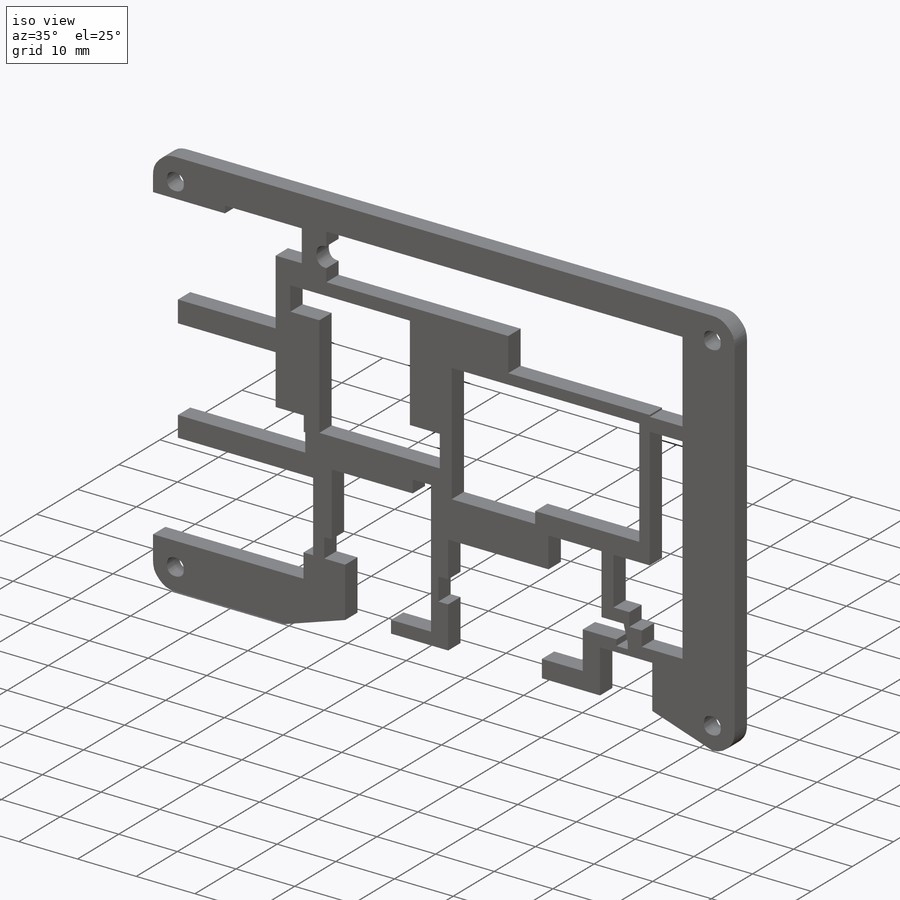
[diagram: iso view]
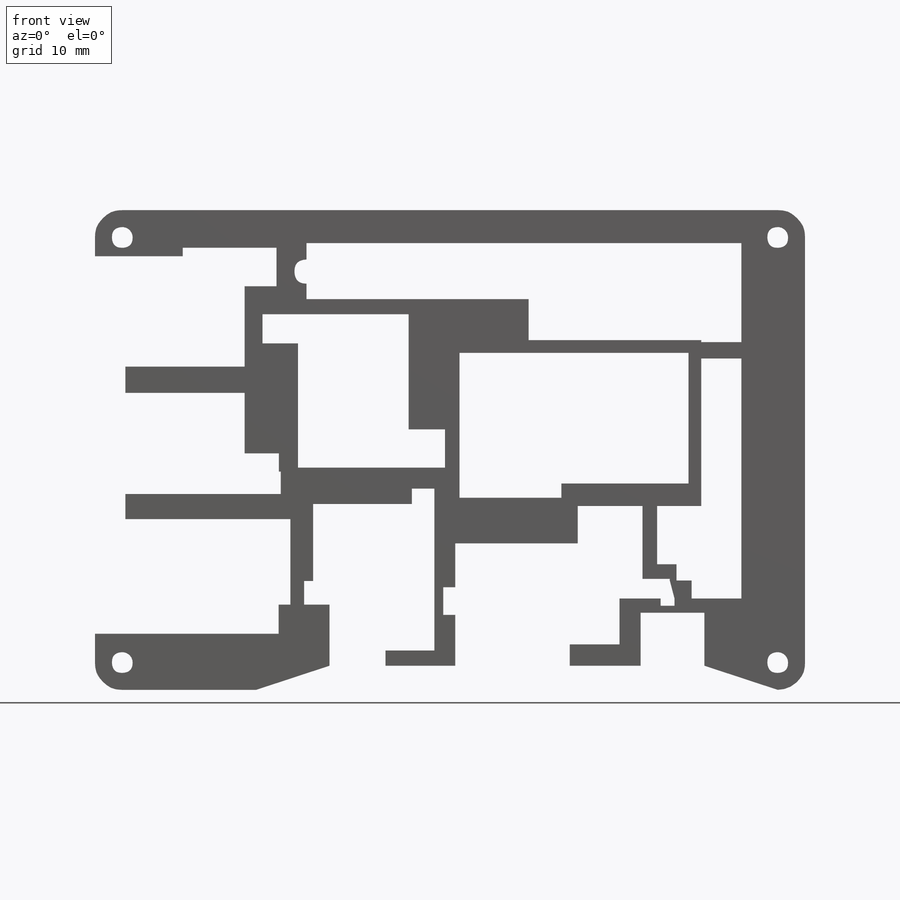
[diagram: front view]
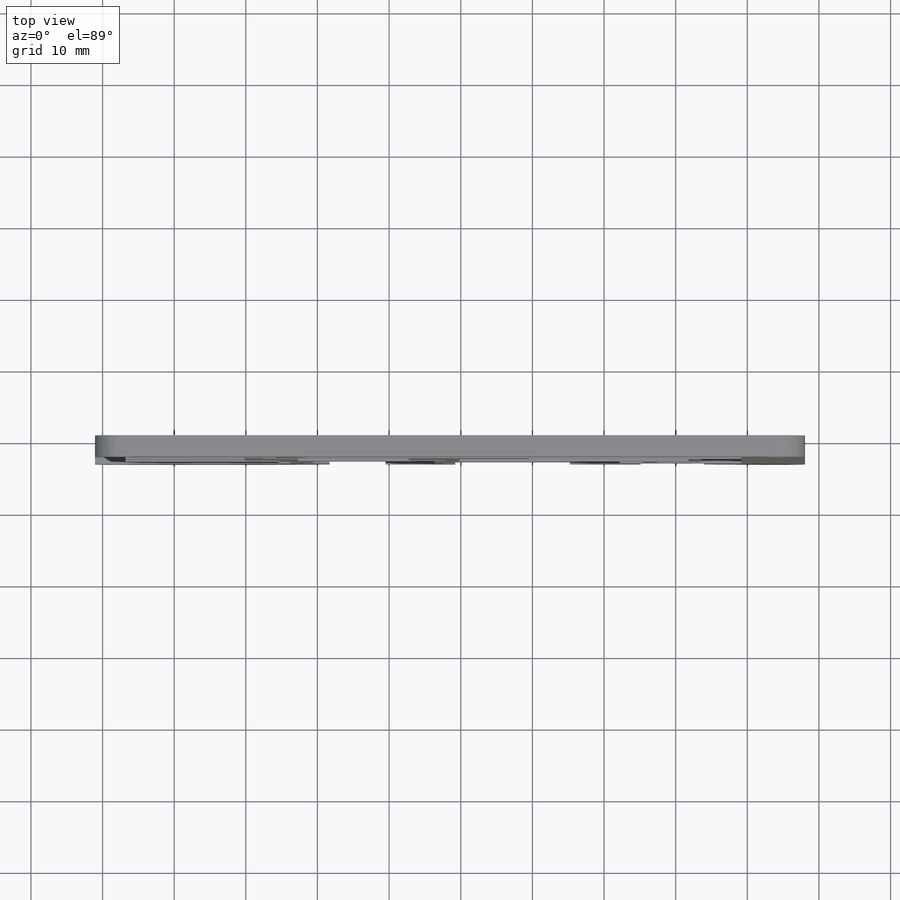
[diagram: top view]
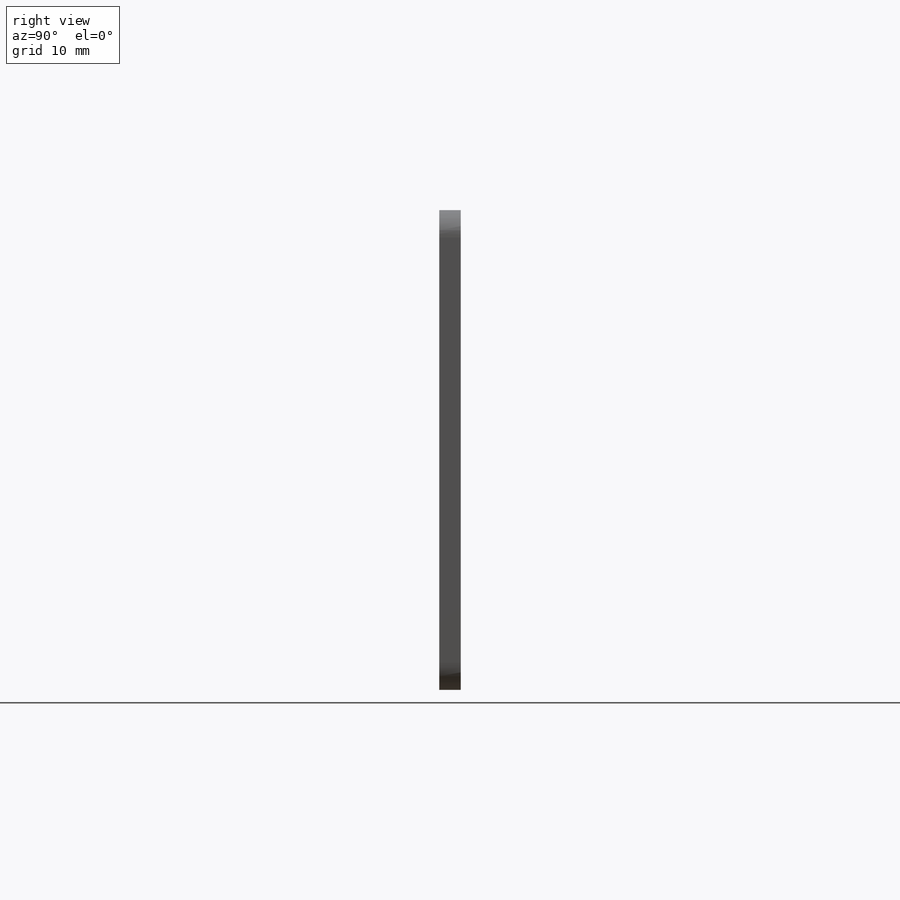
[diagram: right view]
SOLIDWORKS PART (.sldprt)
format: sldprt  version: not decoded by parser v0  size: 4,585,984 bytes
history: native  units: mm
features: sketch x8, extrude x8, material x1 (+11 scaffold rows collapsed)
feature tree (28):
  scaffold x11  (default folders/planes/origin — collapsed)
  material  "Material <not specified>"
  sketch  "Model"
  extrude  "Boss-Extrude1"  Depth=2.9972mm
  extrude  "Boss-Extrude2"  [1 undecoded]
  sketch  "Model<4>"  dims[D1=2.9972mm]
  extrude  "Boss-Extrude3"  [1 undecoded]
  sketch  "Model<5>"  dims[D1=2.9972mm]
  extrude  "Boss-Extrude4"  [1 undecoded]
  sketch  "Model<6>"  dims[D1=2.9972mm]
  extrude  "Boss-Extrude5"  [1 undecoded]
  sketch  "Model<7>"  dims[D1=2.9972mm]
  extrude  "Boss-Extrude6"  [1 undecoded]
  sketch  "Model<8>"  dims[D1=2.9972mm]
  sketch  "Sketch1"
  extrude  "Boss-Extrude7"  Depth=2.9972mm
  sketch  "Sketch2"
  extrude  "Boss-Extrude8"  [1 undecoded]
decode coverage: 7 of 16 modeling features carry decoded parameters
note: 6 parameter values undecoded
summary: no parameter record found for 6 features
note: suppression state not decoded; provenance and decode notes live in map.json
